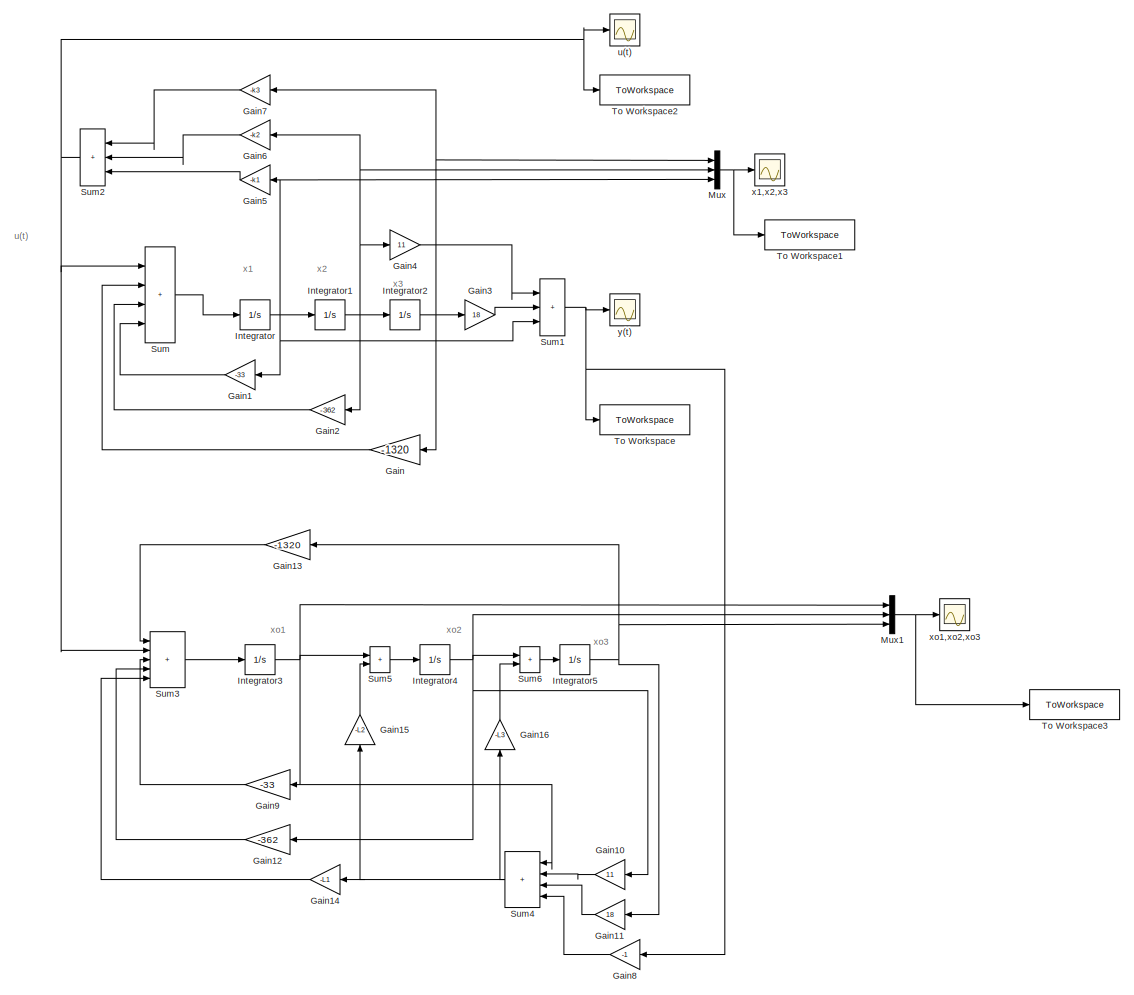
[diagram: root canvas - part 1/1, most of the canvas]
MODEL slx_8b237cae6c22
KIND model
CONFIG AbsTol = auto
CONFIG EnableMultiTasking = off
CONFIG FixedStep = auto
CONFIG MaxStep = auto
CONFIG MinStep = auto
CONFIG RelTol = 1e-3
CONFIG SampleTimeConstraint = Unconstrained
CONFIG SolverName = VariableStepAuto
CONFIG StartTime = 0.0
CONFIG StopTime = 10.0
BLOCK [Gain] Gain
  Gain = -1320
  NameLocation = top
BLOCK [Gain] Gain1
  Gain = -33
  NameLocation = top
BLOCK [Gain] Gain10
  Gain = 11
  NameLocation = top
BLOCK [Gain] Gain11
  Gain = 18
  NameLocation = top
BLOCK [Gain] Gain12
  Gain = -362
  NameLocation = top
BLOCK [Gain] Gain13
  Gain = -1320
  NameLocation = top
BLOCK [Gain] Gain14
  Gain = -L1
  NameLocation = top
BLOCK [Gain] Gain15
  Gain = -L2
  NameLocation = right
BLOCK [Gain] Gain16
  Gain = -L3
  NameLocation = right
BLOCK [Gain] Gain2
  Gain = -362
  NameLocation = top
BLOCK [Gain] Gain3
  Gain = 18
BLOCK [Gain] Gain4
  Gain = 11
BLOCK [Gain] Gain5
  Gain = -k1
  NameLocation = top
BLOCK [Gain] Gain6
  Gain = -k2
  NameLocation = top
BLOCK [Gain] Gain7
  Gain = -k3
  NameLocation = top
BLOCK [Gain] Gain8
  Gain = -1
  NameLocation = top
BLOCK [Gain] Gain9
  Gain = -33
  NameLocation = top
BLOCK [Integrator] Integrator
  InitialCondition = 3
  Ports = [1, 1]
BLOCK [Integrator] Integrator1
  InitialCondition = 2
  Ports = [1, 1]
BLOCK [Integrator] Integrator2
  InitialCondition = -3
  Ports = [1, 1]
BLOCK [Integrator] Integrator3
  Ports = [1, 1]
BLOCK [Integrator] Integrator4
  Ports = [1, 1]
BLOCK [Integrator] Integrator5
  Ports = [1, 1]
BLOCK [Mux] Mux
  DisplayOption = bar
  Inputs = 3
  Ports = [3, 1]
BLOCK [Mux] Mux1
  DisplayOption = bar
  Inputs = 3
  Ports = [3, 1]
BLOCK [Sum] Sum
  IconShape = rectangular
  Inputs = |++++
  Ports = [4, 1]
BLOCK [Sum] Sum1
  IconShape = rectangular
  Inputs = |+++
  Ports = [3, 1]
BLOCK [Sum] Sum2
  IconShape = rectangular
  Inputs = |+++
  NameLocation = top
  Ports = [3, 1]
BLOCK [Sum] Sum3
  IconShape = rectangular
  Inputs = |+++++
  Ports = [5, 1]
BLOCK [Sum] Sum4
  IconShape = rectangular
  Inputs = |++++
  NameLocation = top
  Ports = [4, 1]
BLOCK [Sum] Sum5
  IconShape = rectangular
  Inputs = |++
  Ports = [2, 1]
BLOCK [Sum] Sum6
  IconShape = rectangular
  Inputs = |++
  Ports = [2, 1]
BLOCK [ToWorkspace] To Workspace
  FixptAsFi = on
  MaxDataPoints = inf
  Ports = [1]
  SampleTime = -1
  SaveFormat = Structure With Time
  VariableName = y1
BLOCK [ToWorkspace] To Workspace1
  FixptAsFi = on
  MaxDataPoints = inf
  Ports = [1]
  SampleTime = -1
  SaveFormat = Structure With Time
  VariableName = x
BLOCK [ToWorkspace] To Workspace2
  FixptAsFi = on
  MaxDataPoints = inf
  Ports = [1]
  SampleTime = -1
  SaveFormat = Structure With Time
  VariableName = u
BLOCK [ToWorkspace] To Workspace3
  FixptAsFi = on
  MaxDataPoints = inf
  Ports = [1]
  SampleTime = -1
  SaveFormat = Structure With Time
  VariableName = xo
BLOCK [Scope] u(t)
  Floating = off
  NumInputPorts = 1
  Ports = [1]
  ScopeSpecificationString = Simulink.scopes.TimeScopeBlockCfg('CurrentConfiguration', extmgr.ConfigurationSet(extmgr.Configuration('Core','General UI',true),extmgr.Configuration('Core','Source UI',true),extmgr.Configuration('Sources','WiredSimulink',true,'DataLoggingVariableName','ScopeData1'),extmgr.Configuration('Visuals','Time Domain',true,'SerializedDisplays',{struct('MinYLimReal','-3326.625','MaxYLimReal','369.625','YLa...<+1419ch>
BLOCK [Scope] x1,x2,x3
  Floating = off
  NumInputPorts = 1
  Ports = [1]
  ScopeSpecificationString = Simulink.scopes.TimeScopeBlockCfg('CurrentConfiguration', extmgr.ConfigurationSet(extmgr.Configuration('Core','General UI',true),extmgr.Configuration('Core','Source UI',true),extmgr.Configuration('Sources','WiredSimulink',true,'DataLoggingVariableName','ScopeData2'),extmgr.Configuration('Visuals','Time Domain',true,'SerializedDisplays',{struct('MinYLimReal','-7.43634','MaxYLimReal','11.60033','YLa...<+1430ch>
BLOCK [Scope] xo1,xo2,xo3
  Floating = off
  NumInputPorts = 1
  Ports = [1]
  ScopeSpecificationString = Simulink.scopes.TimeScopeBlockCfg('CurrentConfiguration', extmgr.ConfigurationSet(extmgr.Configuration('Core','General UI',true),extmgr.Configuration('Core','Source UI',true),extmgr.Configuration('Sources','WiredSimulink',true,'DataLoggingVariableName','ScopeData3'),extmgr.Configuration('Visuals','Time Domain',true,'SerializedDisplays',{struct('MinYLimReal','-307.46716','MaxYLimReal','1397.59344',...<+1445ch>
BLOCK [Scope] y(t)
  Floating = off
  NumInputPorts = 1
  Ports = [1]
  ScopeSpecificationString = Simulink.scopes.TimeScopeBlockCfg('CurrentConfiguration', extmgr.ConfigurationSet(extmgr.Configuration('Core','General UI',true),extmgr.Configuration('Core','Source UI',true),extmgr.Configuration('Sources','WiredSimulink',true),extmgr.Configuration('Visuals','Time Domain',true,'SerializedDisplays',{struct('MinYLimReal','-51.98846','MaxYLimReal','177.89614','YLabelReal','','MinYLimMag','0.00000','M...<+1363ch>
ANNOTATION (root): u(t)
ANNOTATION (root): x1
ANNOTATION (root): x2
ANNOTATION (root): x3
ANNOTATION (root): xo1
ANNOTATION (root): xo2
ANNOTATION (root): xo3
LINE Gain10:1 -> Sum4:2
LINE Gain11:1 -> Sum4:3
LINE Gain12:1 -> Sum3:4
LINE Gain13:1 -> Sum3:1
LINE Gain14:1 -> Sum3:5
LINE Gain15:1 -> Sum5:2
LINE Gain16:1 -> Sum6:2
LINE Gain1:1 -> Sum:4
LINE Gain2:1 -> Sum:3
LINE Gain3:1 -> Sum1:2
LINE Gain4:1 -> Sum1:1
LINE Gain5:1 -> Sum2:3
LINE Gain6:1 -> Sum2:2
LINE Gain7:1 -> Sum2:1
LINE Gain8:1 -> Sum4:4
LINE Gain9:1 -> Sum3:3
LINE Gain:1 -> Sum:2
NET Integrator1:1 -> Gain2:1, Gain4:1, Gain6:1, Integrator2:1, Mux:2
NET Integrator2:1 -> Gain3:1, Gain7:1, Gain:1, Mux:1
NET Integrator3:1 -> Gain9:1, Mux1:1, Sum4:1, Sum5:1
NET Integrator4:1 -> Gain10:1, Gain12:1, Mux1:2, Sum6:1
NET Integrator5:1 -> Gain11:1, Gain13:1, Mux1:3
NET Integrator:1 -> Gain1:1, Gain5:1, Integrator1:1, Mux:3, Sum1:3
NET Mux1:1 -> To Workspace3:1, xo1,xo2,xo3:1
NET Mux:1 -> To Workspace1:1, x1,x2,x3:1
NET Sum1:1 -> Gain8:1, To Workspace:1, y(t):1
NET Sum2:1 -> Sum3:2, Sum:1, To Workspace2:1, u(t):1
LINE Sum3:1 -> Integrator3:1
NET Sum4:1 -> Gain14:1, Gain15:1, Gain16:1
LINE Sum5:1 -> Integrator4:1
LINE Sum6:1 -> Integrator5:1
LINE Sum:1 -> Integrator:1
note: NET lines group one-source signal fan-out (src -> all destinations, sorted); 1:1 wires keep LINE
